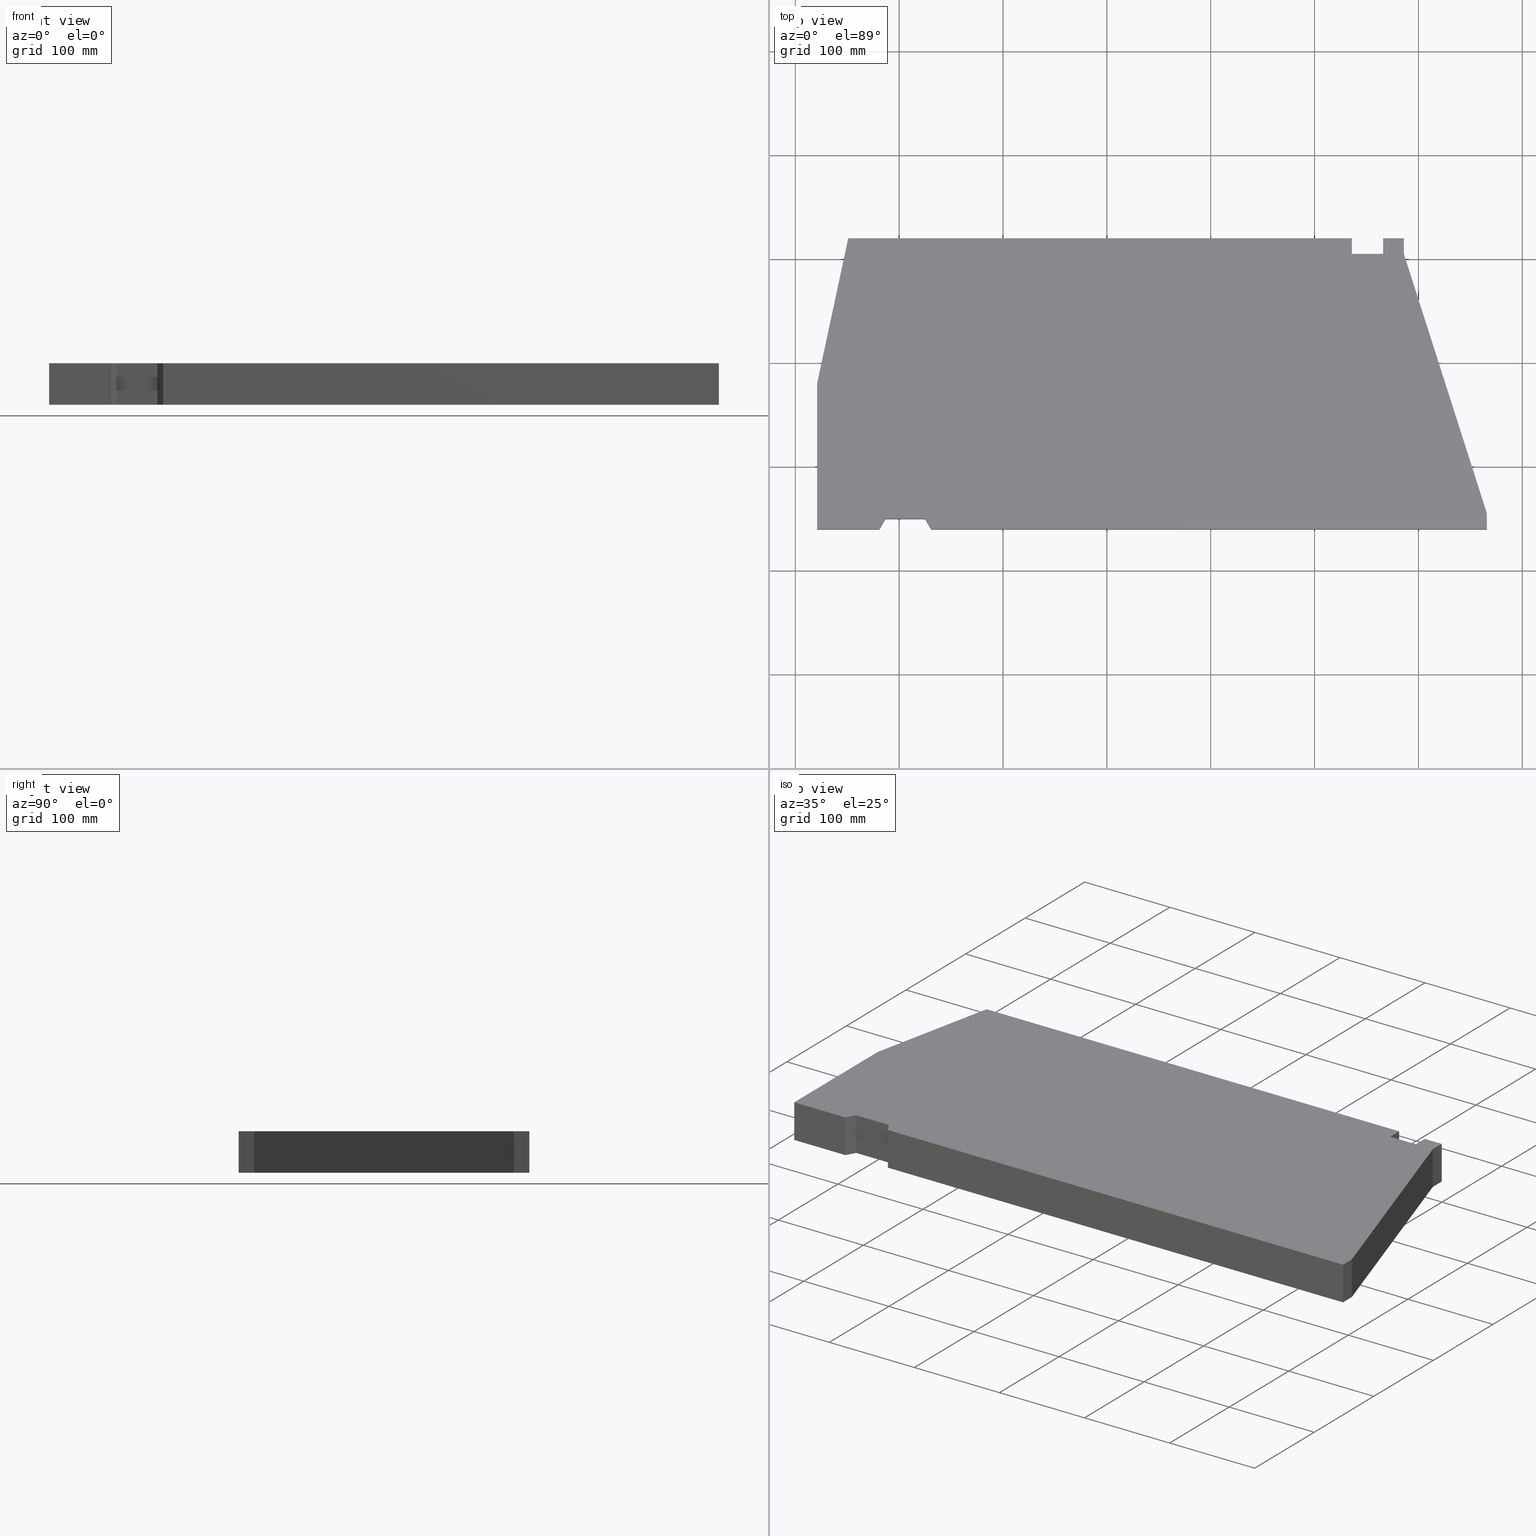
[diagram: canonical four-view strip — front | top / right | iso, engineering-drawing reading convention]
A machine part, canonical four-view strip (front | top / right | iso — engineering-drawing reading convention). The complete STEP part file that produces these views, byte-faithful:
ISO-10303-21;
HEADER;
/* Generated by software containing ST-Developer
 * from STEP Tools, Inc. (www.steptools.com) 
 */

FILE_DESCRIPTION(
/* description */ (''),
/* implementation_level */ '2;1');

FILE_NAME(
/* name */ 
'T:\\SB PRODUKSJON AS\\3 PRODUKTER\\3 BJELKE-S\X\D8YLE\\BSF 700\\STEP\\
S 700 Knife unit.stp',
/* time_stamp */ '2016-06-22T08:46:47+02:00',
/* author */ ('OEM'),
/* organization */ (''),
/* preprocessor_version */ 'ST-DEVELOPER v15.2',
/* originating_system */ 'Autodesk Inventor 2014',
/* authorisation */ '');

FILE_SCHEMA (('CONFIG_CONTROL_DESIGN'));
ENDSEC;

DATA;
#10=SHAPE_REPRESENTATION_RELATIONSHIP('SRR','None',#540,#11);
#11=ADVANCED_BREP_SHAPE_REPRESENTATION($,(#337),#531);
#12=STYLED_ITEM($,(#548),#337);
#13=FACE_OUTER_BOUND($,#30,.T.);
#14=FACE_OUTER_BOUND($,#31,.T.);
#15=FACE_OUTER_BOUND($,#32,.T.);
#16=FACE_OUTER_BOUND($,#33,.T.);
#17=FACE_OUTER_BOUND($,#34,.T.);
#18=FACE_OUTER_BOUND($,#35,.T.);
#19=FACE_OUTER_BOUND($,#36,.T.);
#20=FACE_OUTER_BOUND($,#37,.T.);
#21=FACE_OUTER_BOUND($,#38,.T.);
#22=FACE_OUTER_BOUND($,#39,.T.);
#23=FACE_OUTER_BOUND($,#40,.T.);
#24=FACE_OUTER_BOUND($,#41,.T.);
#25=FACE_OUTER_BOUND($,#42,.T.);
#26=FACE_OUTER_BOUND($,#43,.T.);
#27=FACE_OUTER_BOUND($,#44,.T.);
#28=FACE_OUTER_BOUND($,#45,.T.);
#29=FACE_OUTER_BOUND($,#46,.T.);
#30=EDGE_LOOP($,(#212,#213,#214,#215));
#31=EDGE_LOOP($,(#216,#217,#218,#219));
#32=EDGE_LOOP($,(#220,#221,#222,#223));
#33=EDGE_LOOP($,(#224,#225,#226,#227));
#34=EDGE_LOOP($,(#228,#229,#230,#231));
#35=EDGE_LOOP($,(#232,#233,#234,#235));
#36=EDGE_LOOP($,(#236,#237,#238,#239));
#37=EDGE_LOOP($,(#240,#241,#242,#243));
#38=EDGE_LOOP($,(#244,#245,#246,#247));
#39=EDGE_LOOP($,(#248,#249,#250,#251));
#40=EDGE_LOOP($,(#252,#253,#254,#255));
#41=EDGE_LOOP($,(#256,#257,#258,#259));
#42=EDGE_LOOP($,(#260,#261,#262,#263));
#43=EDGE_LOOP($,(#264,#265,#266,#267));
#44=EDGE_LOOP($,(#268,#269,#270,#271));
#45=EDGE_LOOP($,(#272,#273,#274,#275,#276,#277,#278,#279,#280,#281,#282,
#283,#284,#285,#286));
#46=EDGE_LOOP($,(#287,#288,#289,#290,#291,#292,#293,#294,#295,#296,#297,
#298,#299,#300,#301));
#47=LINE($,#441,#92);
#48=LINE($,#443,#93);
#49=LINE($,#445,#94);
#50=LINE($,#446,#95);
#51=LINE($,#449,#96);
#52=LINE($,#451,#97);
#53=LINE($,#452,#98);
#54=LINE($,#455,#99);
#55=LINE($,#457,#100);
#56=LINE($,#458,#101);
#57=LINE($,#461,#102);
#58=LINE($,#463,#103);
#59=LINE($,#464,#104);
#60=LINE($,#467,#105);
#61=LINE($,#469,#106);
#62=LINE($,#470,#107);
#63=LINE($,#473,#108);
#64=LINE($,#475,#109);
#65=LINE($,#476,#110);
#66=LINE($,#479,#111);
#67=LINE($,#481,#112);
#68=LINE($,#482,#113);
#69=LINE($,#485,#114);
#70=LINE($,#487,#115);
#71=LINE($,#488,#116);
#72=LINE($,#491,#117);
#73=LINE($,#493,#118);
#74=LINE($,#494,#119);
#75=LINE($,#497,#120);
#76=LINE($,#499,#121);
#77=LINE($,#500,#122);
#78=LINE($,#503,#123);
#79=LINE($,#505,#124);
#80=LINE($,#506,#125);
#81=LINE($,#509,#126);
#82=LINE($,#511,#127);
#83=LINE($,#512,#128);
#84=LINE($,#515,#129);
#85=LINE($,#517,#130);
#86=LINE($,#518,#131);
#87=LINE($,#521,#132);
#88=LINE($,#523,#133);
#89=LINE($,#524,#134);
#90=LINE($,#526,#135);
#91=LINE($,#527,#136);
#92=VECTOR($,#360,143.178210632764);
#93=VECTOR($,#361,40.);
#94=VECTOR($,#362,143.178210632764);
#95=VECTOR($,#363,40.);
#96=VECTOR($,#366,485.);
#97=VECTOR($,#367,485.);
#98=VECTOR($,#368,40.);
#99=VECTOR($,#371,15.);
#100=VECTOR($,#372,15.);
#101=VECTOR($,#373,40.);
#102=VECTOR($,#376,30.);
#103=VECTOR($,#377,30.);
#104=VECTOR($,#378,40.);
#105=VECTOR($,#381,15.);
#106=VECTOR($,#382,15.);
#107=VECTOR($,#383,40.);
#108=VECTOR($,#386,20.);
#109=VECTOR($,#387,20.);
#110=VECTOR($,#388,40.);
#111=VECTOR($,#391,15.);
#112=VECTOR($,#392,15.);
#113=VECTOR($,#393,40.);
#114=VECTOR($,#396,262.488094968134);
#115=VECTOR($,#397,262.488094968134);
#116=VECTOR($,#398,40.);
#117=VECTOR($,#401,14.9999999999999);
#118=VECTOR($,#402,14.9999999999999);
#119=VECTOR($,#403,40.);
#120=VECTOR($,#406,535.);
#121=VECTOR($,#407,535.);
#122=VECTOR($,#408,40.);
#123=VECTOR($,#411,11.5470053837925);
#124=VECTOR($,#412,11.5470053837925);
#125=VECTOR($,#413,40.);
#126=VECTOR($,#416,38.4529946162075);
#127=VECTOR($,#417,38.4529946162075);
#128=VECTOR($,#418,40.);
#129=VECTOR($,#421,11.5470053837925);
#130=VECTOR($,#422,11.5470053837925);
#131=VECTOR($,#423,40.);
#132=VECTOR($,#426,60.0000000000001);
#133=VECTOR($,#427,60.0000000000001);
#134=VECTOR($,#428,40.);
#135=VECTOR($,#431,140.);
#136=VECTOR($,#432,140.);
#137=VERTEX_POINT($,#439);
#138=VERTEX_POINT($,#440);
#139=VERTEX_POINT($,#442);
#140=VERTEX_POINT($,#444);
#141=VERTEX_POINT($,#448);
#142=VERTEX_POINT($,#450);
#143=VERTEX_POINT($,#454);
#144=VERTEX_POINT($,#456);
#145=VERTEX_POINT($,#460);
#146=VERTEX_POINT($,#462);
#147=VERTEX_POINT($,#466);
#148=VERTEX_POINT($,#468);
#149=VERTEX_POINT($,#472);
#150=VERTEX_POINT($,#474);
#151=VERTEX_POINT($,#478);
#152=VERTEX_POINT($,#480);
#153=VERTEX_POINT($,#484);
#154=VERTEX_POINT($,#486);
#155=VERTEX_POINT($,#490);
#156=VERTEX_POINT($,#492);
#157=VERTEX_POINT($,#496);
#158=VERTEX_POINT($,#498);
#159=VERTEX_POINT($,#502);
#160=VERTEX_POINT($,#504);
#161=VERTEX_POINT($,#508);
#162=VERTEX_POINT($,#510);
#163=VERTEX_POINT($,#514);
#164=VERTEX_POINT($,#516);
#165=VERTEX_POINT($,#520);
#166=VERTEX_POINT($,#522);
#167=EDGE_CURVE($,#137,#138,#47,.T.);
#168=EDGE_CURVE($,#137,#139,#48,.T.);
#169=EDGE_CURVE($,#140,#139,#49,.T.);
#170=EDGE_CURVE($,#138,#140,#50,.T.);
#171=EDGE_CURVE($,#138,#141,#51,.T.);
#172=EDGE_CURVE($,#142,#140,#52,.T.);
#173=EDGE_CURVE($,#141,#142,#53,.T.);
#174=EDGE_CURVE($,#141,#143,#54,.T.);
#175=EDGE_CURVE($,#144,#142,#55,.T.);
#176=EDGE_CURVE($,#143,#144,#56,.T.);
#177=EDGE_CURVE($,#143,#145,#57,.T.);
#178=EDGE_CURVE($,#146,#144,#58,.T.);
#179=EDGE_CURVE($,#145,#146,#59,.T.);
#180=EDGE_CURVE($,#145,#147,#60,.T.);
#181=EDGE_CURVE($,#148,#146,#61,.T.);
#182=EDGE_CURVE($,#147,#148,#62,.T.);
#183=EDGE_CURVE($,#147,#149,#63,.T.);
#184=EDGE_CURVE($,#150,#148,#64,.T.);
#185=EDGE_CURVE($,#149,#150,#65,.T.);
#186=EDGE_CURVE($,#149,#151,#66,.T.);
#187=EDGE_CURVE($,#152,#150,#67,.T.);
#188=EDGE_CURVE($,#151,#152,#68,.T.);
#189=EDGE_CURVE($,#151,#153,#69,.T.);
#190=EDGE_CURVE($,#154,#152,#70,.T.);
#191=EDGE_CURVE($,#153,#154,#71,.T.);
#192=EDGE_CURVE($,#153,#155,#72,.T.);
#193=EDGE_CURVE($,#156,#154,#73,.T.);
#194=EDGE_CURVE($,#155,#156,#74,.T.);
#195=EDGE_CURVE($,#155,#157,#75,.T.);
#196=EDGE_CURVE($,#158,#156,#76,.T.);
#197=EDGE_CURVE($,#157,#158,#77,.T.);
#198=EDGE_CURVE($,#157,#159,#78,.T.);
#199=EDGE_CURVE($,#160,#158,#79,.T.);
#200=EDGE_CURVE($,#159,#160,#80,.T.);
#201=EDGE_CURVE($,#159,#161,#81,.T.);
#202=EDGE_CURVE($,#162,#160,#82,.T.);
#203=EDGE_CURVE($,#161,#162,#83,.T.);
#204=EDGE_CURVE($,#161,#163,#84,.T.);
#205=EDGE_CURVE($,#164,#162,#85,.T.);
#206=EDGE_CURVE($,#163,#164,#86,.T.);
#207=EDGE_CURVE($,#163,#165,#87,.T.);
#208=EDGE_CURVE($,#166,#164,#88,.T.);
#209=EDGE_CURVE($,#165,#166,#89,.T.);
#210=EDGE_CURVE($,#165,#137,#90,.T.);
#211=EDGE_CURVE($,#139,#166,#91,.T.);
#212=ORIENTED_EDGE($,*,*,#167,.F.);
#213=ORIENTED_EDGE($,*,*,#168,.T.);
#214=ORIENTED_EDGE($,*,*,#169,.F.);
#215=ORIENTED_EDGE($,*,*,#170,.F.);
#216=ORIENTED_EDGE($,*,*,#171,.F.);
#217=ORIENTED_EDGE($,*,*,#170,.T.);
#218=ORIENTED_EDGE($,*,*,#172,.F.);
#219=ORIENTED_EDGE($,*,*,#173,.F.);
#220=ORIENTED_EDGE($,*,*,#174,.F.);
#221=ORIENTED_EDGE($,*,*,#173,.T.);
#222=ORIENTED_EDGE($,*,*,#175,.F.);
#223=ORIENTED_EDGE($,*,*,#176,.F.);
#224=ORIENTED_EDGE($,*,*,#177,.F.);
#225=ORIENTED_EDGE($,*,*,#176,.T.);
#226=ORIENTED_EDGE($,*,*,#178,.F.);
#227=ORIENTED_EDGE($,*,*,#179,.F.);
#228=ORIENTED_EDGE($,*,*,#180,.F.);
#229=ORIENTED_EDGE($,*,*,#179,.T.);
#230=ORIENTED_EDGE($,*,*,#181,.F.);
#231=ORIENTED_EDGE($,*,*,#182,.F.);
#232=ORIENTED_EDGE($,*,*,#183,.F.);
#233=ORIENTED_EDGE($,*,*,#182,.T.);
#234=ORIENTED_EDGE($,*,*,#184,.F.);
#235=ORIENTED_EDGE($,*,*,#185,.F.);
#236=ORIENTED_EDGE($,*,*,#186,.F.);
#237=ORIENTED_EDGE($,*,*,#185,.T.);
#238=ORIENTED_EDGE($,*,*,#187,.F.);
#239=ORIENTED_EDGE($,*,*,#188,.F.);
#240=ORIENTED_EDGE($,*,*,#189,.F.);
#241=ORIENTED_EDGE($,*,*,#188,.T.);
#242=ORIENTED_EDGE($,*,*,#190,.F.);
#243=ORIENTED_EDGE($,*,*,#191,.F.);
#244=ORIENTED_EDGE($,*,*,#192,.F.);
#245=ORIENTED_EDGE($,*,*,#191,.T.);
#246=ORIENTED_EDGE($,*,*,#193,.F.);
#247=ORIENTED_EDGE($,*,*,#194,.F.);
#248=ORIENTED_EDGE($,*,*,#195,.F.);
#249=ORIENTED_EDGE($,*,*,#194,.T.);
#250=ORIENTED_EDGE($,*,*,#196,.F.);
#251=ORIENTED_EDGE($,*,*,#197,.F.);
#252=ORIENTED_EDGE($,*,*,#198,.F.);
#253=ORIENTED_EDGE($,*,*,#197,.T.);
#254=ORIENTED_EDGE($,*,*,#199,.F.);
#255=ORIENTED_EDGE($,*,*,#200,.F.);
#256=ORIENTED_EDGE($,*,*,#201,.F.);
#257=ORIENTED_EDGE($,*,*,#200,.T.);
#258=ORIENTED_EDGE($,*,*,#202,.F.);
#259=ORIENTED_EDGE($,*,*,#203,.F.);
#260=ORIENTED_EDGE($,*,*,#204,.F.);
#261=ORIENTED_EDGE($,*,*,#203,.T.);
#262=ORIENTED_EDGE($,*,*,#205,.F.);
#263=ORIENTED_EDGE($,*,*,#206,.F.);
#264=ORIENTED_EDGE($,*,*,#207,.F.);
#265=ORIENTED_EDGE($,*,*,#206,.T.);
#266=ORIENTED_EDGE($,*,*,#208,.F.);
#267=ORIENTED_EDGE($,*,*,#209,.F.);
#268=ORIENTED_EDGE($,*,*,#210,.F.);
#269=ORIENTED_EDGE($,*,*,#209,.T.);
#270=ORIENTED_EDGE($,*,*,#211,.F.);
#271=ORIENTED_EDGE($,*,*,#168,.F.);
#272=ORIENTED_EDGE($,*,*,#211,.T.);
#273=ORIENTED_EDGE($,*,*,#208,.T.);
#274=ORIENTED_EDGE($,*,*,#205,.T.);
#275=ORIENTED_EDGE($,*,*,#202,.T.);
#276=ORIENTED_EDGE($,*,*,#199,.T.);
#277=ORIENTED_EDGE($,*,*,#196,.T.);
#278=ORIENTED_EDGE($,*,*,#193,.T.);
#279=ORIENTED_EDGE($,*,*,#190,.T.);
#280=ORIENTED_EDGE($,*,*,#187,.T.);
#281=ORIENTED_EDGE($,*,*,#184,.T.);
#282=ORIENTED_EDGE($,*,*,#181,.T.);
#283=ORIENTED_EDGE($,*,*,#178,.T.);
#284=ORIENTED_EDGE($,*,*,#175,.T.);
#285=ORIENTED_EDGE($,*,*,#172,.T.);
#286=ORIENTED_EDGE($,*,*,#169,.T.);
#287=ORIENTED_EDGE($,*,*,#210,.T.);
#288=ORIENTED_EDGE($,*,*,#167,.T.);
#289=ORIENTED_EDGE($,*,*,#171,.T.);
#290=ORIENTED_EDGE($,*,*,#174,.T.);
#291=ORIENTED_EDGE($,*,*,#177,.T.);
#292=ORIENTED_EDGE($,*,*,#180,.T.);
#293=ORIENTED_EDGE($,*,*,#183,.T.);
#294=ORIENTED_EDGE($,*,*,#186,.T.);
#295=ORIENTED_EDGE($,*,*,#189,.T.);
#296=ORIENTED_EDGE($,*,*,#192,.T.);
#297=ORIENTED_EDGE($,*,*,#195,.T.);
#298=ORIENTED_EDGE($,*,*,#198,.T.);
#299=ORIENTED_EDGE($,*,*,#201,.T.);
#300=ORIENTED_EDGE($,*,*,#204,.T.);
#301=ORIENTED_EDGE($,*,*,#207,.T.);
#302=PLANE($,#339);
#303=PLANE($,#340);
#304=PLANE($,#341);
#305=PLANE($,#342);
#306=PLANE($,#343);
#307=PLANE($,#344);
#308=PLANE($,#345);
#309=PLANE($,#346);
#310=PLANE($,#347);
#311=PLANE($,#348);
#312=PLANE($,#349);
#313=PLANE($,#350);
#314=PLANE($,#351);
#315=PLANE($,#352);
#316=PLANE($,#353);
#317=PLANE($,#354);
#318=PLANE($,#355);
#319=ADVANCED_FACE($,(#13),#302,.T.);
#320=ADVANCED_FACE($,(#14),#303,.T.);
#321=ADVANCED_FACE($,(#15),#304,.T.);
#322=ADVANCED_FACE($,(#16),#305,.T.);
#323=ADVANCED_FACE($,(#17),#306,.T.);
#324=ADVANCED_FACE($,(#18),#307,.T.);
#325=ADVANCED_FACE($,(#19),#308,.T.);
#326=ADVANCED_FACE($,(#20),#309,.T.);
#327=ADVANCED_FACE($,(#21),#310,.T.);
#328=ADVANCED_FACE($,(#22),#311,.T.);
#329=ADVANCED_FACE($,(#23),#312,.T.);
#330=ADVANCED_FACE($,(#24),#313,.T.);
#331=ADVANCED_FACE($,(#25),#314,.T.);
#332=ADVANCED_FACE($,(#26),#315,.T.);
#333=ADVANCED_FACE($,(#27),#316,.T.);
#334=ADVANCED_FACE($,(#28),#317,.T.);
#335=ADVANCED_FACE($,(#29),#318,.F.);
#336=CLOSED_SHELL($,(#319,#320,#321,#322,#323,#324,#325,#326,#327,#328,
#329,#330,#331,#332,#333,#334,#335));
#337=MANIFOLD_SOLID_BREP('Solid1',#336);
#338=AXIS2_PLACEMENT_3D('placement',#437,#356,#357);
#339=AXIS2_PLACEMENT_3D($,#438,#358,#359);
#340=AXIS2_PLACEMENT_3D($,#447,#364,#365);
#341=AXIS2_PLACEMENT_3D($,#453,#369,#370);
#342=AXIS2_PLACEMENT_3D($,#459,#374,#375);
#343=AXIS2_PLACEMENT_3D($,#465,#379,#380);
#344=AXIS2_PLACEMENT_3D($,#471,#384,#385);
#345=AXIS2_PLACEMENT_3D($,#477,#389,#390);
#346=AXIS2_PLACEMENT_3D($,#483,#394,#395);
#347=AXIS2_PLACEMENT_3D($,#489,#399,#400);
#348=AXIS2_PLACEMENT_3D($,#495,#404,#405);
#349=AXIS2_PLACEMENT_3D($,#501,#409,#410);
#350=AXIS2_PLACEMENT_3D($,#507,#414,#415);
#351=AXIS2_PLACEMENT_3D($,#513,#419,#420);
#352=AXIS2_PLACEMENT_3D($,#519,#424,#425);
#353=AXIS2_PLACEMENT_3D($,#525,#429,#430);
#354=AXIS2_PLACEMENT_3D($,#528,#433,#434);
#355=AXIS2_PLACEMENT_3D($,#529,#435,#436);
#356=DIRECTION('axis',(0.,0.,1.));
#357=DIRECTION('refdir',(1.,0.,0.));
#358=DIRECTION('center_axis',(-0.97780241407741,0.209529088730874,0.));
#359=DIRECTION('ref_axis',(-0.209529088730875,-0.977802414077409,0.));
#360=DIRECTION($,(0.209529088730874,0.97780241407741,0.));
#361=DIRECTION($,(0.,0.,1.));
#362=DIRECTION($,(-0.209529088730874,-0.97780241407741,0.));
#363=DIRECTION($,(0.,0.,1.));
#364=DIRECTION('center_axis',(-7.32518284288763E-017,1.,0.));
#365=DIRECTION('ref_axis',(-1.,0.,0.));
#366=DIRECTION($,(1.,7.32518284288763E-017,0.));
#367=DIRECTION($,(-1.,-7.32518284288763E-017,0.));
#368=DIRECTION($,(0.,0.,1.));
#369=DIRECTION('center_axis',(1.,0.,0.));
#370=DIRECTION('ref_axis',(0.,1.,0.));
#371=DIRECTION($,(0.,-1.,0.));
#372=DIRECTION($,(0.,1.,0.));
#373=DIRECTION($,(0.,0.,1.));
#374=DIRECTION('center_axis',(0.,1.,0.));
#375=DIRECTION('ref_axis',(-1.,0.,0.));
#376=DIRECTION($,(1.,0.,0.));
#377=DIRECTION($,(-1.,0.,0.));
#378=DIRECTION($,(0.,0.,1.));
#379=DIRECTION('center_axis',(-1.,0.,0.));
#380=DIRECTION('ref_axis',(0.,-1.,0.));
#381=DIRECTION($,(0.,1.,0.));
#382=DIRECTION($,(0.,-1.,0.));
#383=DIRECTION($,(0.,0.,1.));
#384=DIRECTION('center_axis',(0.,1.,0.));
#385=DIRECTION('ref_axis',(-1.,0.,0.));
#386=DIRECTION($,(1.,0.,0.));
#387=DIRECTION($,(-1.,0.,0.));
#388=DIRECTION($,(0.,0.,1.));
#389=DIRECTION('center_axis',(1.,0.,0.));
#390=DIRECTION('ref_axis',(0.,1.,0.));
#391=DIRECTION($,(0.,-1.,0.));
#392=DIRECTION($,(0.,1.,0.));
#393=DIRECTION($,(0.,0.,1.));
#394=DIRECTION('center_axis',(0.952424147199324,0.304775727103784,0.));
#395=DIRECTION('ref_axis',(-0.304775727103783,0.952424147199325,0.));
#396=DIRECTION($,(0.304775727103784,-0.952424147199324,0.));
#397=DIRECTION($,(-0.304775727103784,0.952424147199324,0.));
#398=DIRECTION($,(0.,0.,1.));
#399=DIRECTION('center_axis',(1.,0.,0.));
#400=DIRECTION('ref_axis',(0.,1.,0.));
#401=DIRECTION($,(0.,-1.,0.));
#402=DIRECTION($,(0.,1.,0.));
#403=DIRECTION($,(0.,0.,1.));
#404=DIRECTION('center_axis',(2.65623452620598E-016,-1.,0.));
#405=DIRECTION('ref_axis',(1.,0.,0.));
#406=DIRECTION($,(-1.,-2.65623452620598E-016,0.));
#407=DIRECTION($,(1.,2.65623452620598E-016,0.));
#408=DIRECTION($,(0.,0.,1.));
#409=DIRECTION('center_axis',(-0.866025403784439,-0.499999999999999,0.));
#410=DIRECTION('ref_axis',(0.499999999999999,-0.866025403784439,0.));
#411=DIRECTION($,(-0.499999999999999,0.866025403784439,0.));
#412=DIRECTION($,(0.499999999999999,-0.866025403784439,0.));
#413=DIRECTION($,(0.,0.,1.));
#414=DIRECTION('center_axis',(0.,-1.,0.));
#415=DIRECTION('ref_axis',(1.,0.,0.));
#416=DIRECTION($,(-1.,0.,0.));
#417=DIRECTION($,(1.,0.,0.));
#418=DIRECTION($,(0.,0.,1.));
#419=DIRECTION('center_axis',(0.866025403784438,-0.500000000000001,0.));
#420=DIRECTION('ref_axis',(0.500000000000002,0.866025403784438,0.));
#421=DIRECTION($,(-0.500000000000001,-0.866025403784438,0.));
#422=DIRECTION($,(0.500000000000001,0.866025403784438,0.));
#423=DIRECTION($,(0.,0.,1.));
#424=DIRECTION('center_axis',(0.,-1.,0.));
#425=DIRECTION('ref_axis',(1.,0.,0.));
#426=DIRECTION($,(-1.,0.,0.));
#427=DIRECTION($,(1.,0.,0.));
#428=DIRECTION($,(0.,0.,1.));
#429=DIRECTION('center_axis',(-1.,2.53765262771464E-016,0.));
#430=DIRECTION('ref_axis',(0.,-1.,0.));
#431=DIRECTION($,(2.53765262771464E-016,1.,0.));
#432=DIRECTION($,(-2.53765262771464E-016,-1.,0.));
#433=DIRECTION('center_axis',(0.,0.,1.));
#434=DIRECTION('ref_axis',(1.,0.,0.));
#435=DIRECTION('center_axis',(0.,0.,1.));
#436=DIRECTION('ref_axis',(1.,0.,0.));
#437=CARTESIAN_POINT('',(0.,0.,0.));
#438=CARTESIAN_POINT('Origin',(-149.031144331396,119.653979238754,0.));
#439=CARTESIAN_POINT('',(-179.031144331396,-20.3460207612457,0.));
#440=CARTESIAN_POINT('',(-149.031144331396,119.653979238754,0.));
#441=CARTESIAN_POINT($,(-179.031144331396,-20.3460207612457,0.));
#442=CARTESIAN_POINT('',(-179.031144331396,-20.3460207612457,40.));
#443=CARTESIAN_POINT($,(-179.031144331396,-20.3460207612457,0.));
#444=CARTESIAN_POINT('',(-149.031144331396,119.653979238754,40.));
#445=CARTESIAN_POINT($,(-179.031144331396,-20.3460207612457,40.));
#446=CARTESIAN_POINT($,(-149.031144331396,119.653979238754,0.));
#447=CARTESIAN_POINT('Origin',(335.968855668604,119.653979238754,0.));
#448=CARTESIAN_POINT('',(335.968855668604,119.653979238754,0.));
#449=CARTESIAN_POINT($,(-149.031144331396,119.653979238754,0.));
#450=CARTESIAN_POINT('',(335.968855668604,119.653979238754,40.));
#451=CARTESIAN_POINT($,(-149.031144331396,119.653979238754,40.));
#452=CARTESIAN_POINT($,(335.968855668604,119.653979238754,0.));
#453=CARTESIAN_POINT('Origin',(335.968855668604,104.653979238754,0.));
#454=CARTESIAN_POINT('',(335.968855668604,104.653979238754,0.));
#455=CARTESIAN_POINT($,(335.968855668604,119.653979238754,0.));
#456=CARTESIAN_POINT('',(335.968855668604,104.653979238754,40.));
#457=CARTESIAN_POINT($,(335.968855668604,119.653979238754,40.));
#458=CARTESIAN_POINT($,(335.968855668604,104.653979238754,0.));
#459=CARTESIAN_POINT('Origin',(365.968855668604,104.653979238754,0.));
#460=CARTESIAN_POINT('',(365.968855668604,104.653979238754,0.));
#461=CARTESIAN_POINT($,(335.968855668604,104.653979238754,0.));
#462=CARTESIAN_POINT('',(365.968855668604,104.653979238754,40.));
#463=CARTESIAN_POINT($,(335.968855668604,104.653979238754,40.));
#464=CARTESIAN_POINT($,(365.968855668604,104.653979238754,0.));
#465=CARTESIAN_POINT('Origin',(365.968855668604,119.653979238754,0.));
#466=CARTESIAN_POINT('',(365.968855668604,119.653979238754,0.));
#467=CARTESIAN_POINT($,(365.968855668604,104.653979238754,0.));
#468=CARTESIAN_POINT('',(365.968855668604,119.653979238754,40.));
#469=CARTESIAN_POINT($,(365.968855668604,104.653979238754,40.));
#470=CARTESIAN_POINT($,(365.968855668604,119.653979238754,0.));
#471=CARTESIAN_POINT('Origin',(385.968855668604,119.653979238754,0.));
#472=CARTESIAN_POINT('',(385.968855668604,119.653979238754,0.));
#473=CARTESIAN_POINT($,(365.968855668604,119.653979238754,0.));
#474=CARTESIAN_POINT('',(385.968855668604,119.653979238754,40.));
#475=CARTESIAN_POINT($,(365.968855668604,119.653979238754,40.));
#476=CARTESIAN_POINT($,(385.968855668604,119.653979238754,0.));
#477=CARTESIAN_POINT('Origin',(385.968855668604,104.653979238754,0.));
#478=CARTESIAN_POINT('',(385.968855668604,104.653979238754,0.));
#479=CARTESIAN_POINT($,(385.968855668604,119.653979238754,0.));
#480=CARTESIAN_POINT('',(385.968855668604,104.653979238754,40.));
#481=CARTESIAN_POINT($,(385.968855668604,119.653979238754,40.));
#482=CARTESIAN_POINT($,(385.968855668604,104.653979238754,0.));
#483=CARTESIAN_POINT('Origin',(465.968855668604,-145.346020761246,0.));
#484=CARTESIAN_POINT('',(465.968855668604,-145.346020761246,0.));
#485=CARTESIAN_POINT($,(385.968855668604,104.653979238754,0.));
#486=CARTESIAN_POINT('',(465.968855668604,-145.346020761246,40.));
#487=CARTESIAN_POINT($,(385.968855668604,104.653979238754,40.));
#488=CARTESIAN_POINT($,(465.968855668604,-145.346020761246,0.));
#489=CARTESIAN_POINT('Origin',(465.968855668604,-160.346020761246,0.));
#490=CARTESIAN_POINT('',(465.968855668604,-160.346020761246,0.));
#491=CARTESIAN_POINT($,(465.968855668604,-145.346020761246,0.));
#492=CARTESIAN_POINT('',(465.968855668604,-160.346020761246,40.));
#493=CARTESIAN_POINT($,(465.968855668604,-145.346020761246,40.));
#494=CARTESIAN_POINT($,(465.968855668604,-160.346020761246,0.));
#495=CARTESIAN_POINT('Origin',(-69.0311443313963,-160.346020761246,0.));
#496=CARTESIAN_POINT('',(-69.0311443313964,-160.346020761246,0.));
#497=CARTESIAN_POINT($,(465.968855668604,-160.346020761246,0.));
#498=CARTESIAN_POINT('',(-69.0311443313964,-160.346020761246,40.));
#499=CARTESIAN_POINT($,(465.968855668604,-160.346020761246,40.));
#500=CARTESIAN_POINT($,(-69.0311443313964,-160.346020761246,0.));
#501=CARTESIAN_POINT('Origin',(-74.8046470232926,-150.346020761246,0.));
#502=CARTESIAN_POINT('',(-74.8046470232926,-150.346020761246,0.));
#503=CARTESIAN_POINT($,(-69.0311443313964,-160.346020761246,0.));
#504=CARTESIAN_POINT('',(-74.8046470232926,-150.346020761246,40.));
#505=CARTESIAN_POINT($,(-69.0311443313964,-160.346020761246,40.));
#506=CARTESIAN_POINT($,(-74.8046470232926,-150.346020761246,0.));
#507=CARTESIAN_POINT('Origin',(-113.2576416395,-150.346020761246,0.));
#508=CARTESIAN_POINT('',(-113.2576416395,-150.346020761246,0.));
#509=CARTESIAN_POINT($,(-74.8046470232926,-150.346020761246,0.));
#510=CARTESIAN_POINT('',(-113.2576416395,-150.346020761246,40.));
#511=CARTESIAN_POINT($,(-74.8046470232926,-150.346020761246,40.));
#512=CARTESIAN_POINT($,(-113.2576416395,-150.346020761246,0.));
#513=CARTESIAN_POINT('Origin',(-119.031144331396,-160.346020761246,0.));
#514=CARTESIAN_POINT('',(-119.031144331396,-160.346020761246,0.));
#515=CARTESIAN_POINT($,(-113.2576416395,-150.346020761246,0.));
#516=CARTESIAN_POINT('',(-119.031144331396,-160.346020761246,40.));
#517=CARTESIAN_POINT($,(-113.2576416395,-150.346020761246,40.));
#518=CARTESIAN_POINT($,(-119.031144331396,-160.346020761246,0.));
#519=CARTESIAN_POINT('Origin',(-179.031144331396,-160.346020761246,0.));
#520=CARTESIAN_POINT('',(-179.031144331396,-160.346020761246,0.));
#521=CARTESIAN_POINT($,(-119.031144331396,-160.346020761246,0.));
#522=CARTESIAN_POINT('',(-179.031144331396,-160.346020761246,40.));
#523=CARTESIAN_POINT($,(-119.031144331396,-160.346020761246,40.));
#524=CARTESIAN_POINT($,(-179.031144331396,-160.346020761246,0.));
#525=CARTESIAN_POINT('Origin',(-179.031144331396,-20.3460207612457,0.));
#526=CARTESIAN_POINT($,(-179.031144331396,-160.346020761246,0.));
#527=CARTESIAN_POINT($,(-179.031144331396,-160.346020761246,40.));
#528=CARTESIAN_POINT('Origin',(134.320344126187,-27.4509681436136,40.));
#529=CARTESIAN_POINT('Origin',(134.320344126187,-27.4509681436136,0.));
#530=UNCERTAINTY_MEASURE_WITH_UNIT(LENGTH_MEASURE(0.01),#532,
'DISTANCE_ACCURACY_VALUE',
'Maximum model space distance between geometric entities at asserted c
onnectivities');
#531=(
GEOMETRIC_REPRESENTATION_CONTEXT(3)
GLOBAL_UNCERTAINTY_ASSIGNED_CONTEXT((#530))
GLOBAL_UNIT_ASSIGNED_CONTEXT((#532,#535,#533))
REPRESENTATION_CONTEXT('','3D')
);
#532=(
LENGTH_UNIT()
NAMED_UNIT(*)
SI_UNIT(.MILLI.,.METRE.)
);
#533=(
NAMED_UNIT(*)
SI_UNIT($,.STERADIAN.)
SOLID_ANGLE_UNIT()
);
#534=DIMENSIONAL_EXPONENTS(0.,0.,0.,0.,0.,0.,0.);
#535=(
CONVERSION_BASED_UNIT('degree',#537)
NAMED_UNIT(#534)
PLANE_ANGLE_UNIT()
);
#536=(
NAMED_UNIT(*)
PLANE_ANGLE_UNIT()
SI_UNIT($,.RADIAN.)
);
#537=PLANE_ANGLE_MEASURE_WITH_UNIT(PLANE_ANGLE_MEASURE(0.01745329252),#536);
#538=SHAPE_DEFINITION_REPRESENTATION(#539,#540);
#539=PRODUCT_DEFINITION_SHAPE('',$,#542);
#540=SHAPE_REPRESENTATION('',(#338),#531);
#541=DESIGN_CONTEXT('3D Mechanical Parts',#545,'design');
#542=PRODUCT_DEFINITION('S 700 Knife unit','S 700 Knife unit',#543,#541);
#543=PRODUCT_DEFINITION_FORMATION('',$,#547);
#544=APPLICATION_PROTOCOL_DEFINITION('international standard',
'ap203_configuration_controlled_3d_design_of_mechanical_parts_and_asse
mblies_mim_lf',2004,#545);
#545=APPLICATION_CONTEXT(
'Configuration Controlled 3D Design of Mechanical Parts and Assemblies');
#546=MECHANICAL_CONTEXT('3D Mechanical Parts',#545,'mechanical');
#547=PRODUCT('S 700 Knife unit','S 700 Knife unit',$,(#546));
#548=PRESENTATION_STYLE_ASSIGNMENT((#549));
#549=SURFACE_STYLE_USAGE(.BOTH.,#550);
#550=SURFACE_SIDE_STYLE($,(#551));
#551=SURFACE_STYLE_FILL_AREA(#552);
#552=FILL_AREA_STYLE($,(#553));
#553=FILL_AREA_STYLE_COLOUR($,#554);
#554=COLOUR_RGB('',0.87843137254902,0.874509803921569,0.858823529411765);
ENDSEC;
END-ISO-10303-21;
